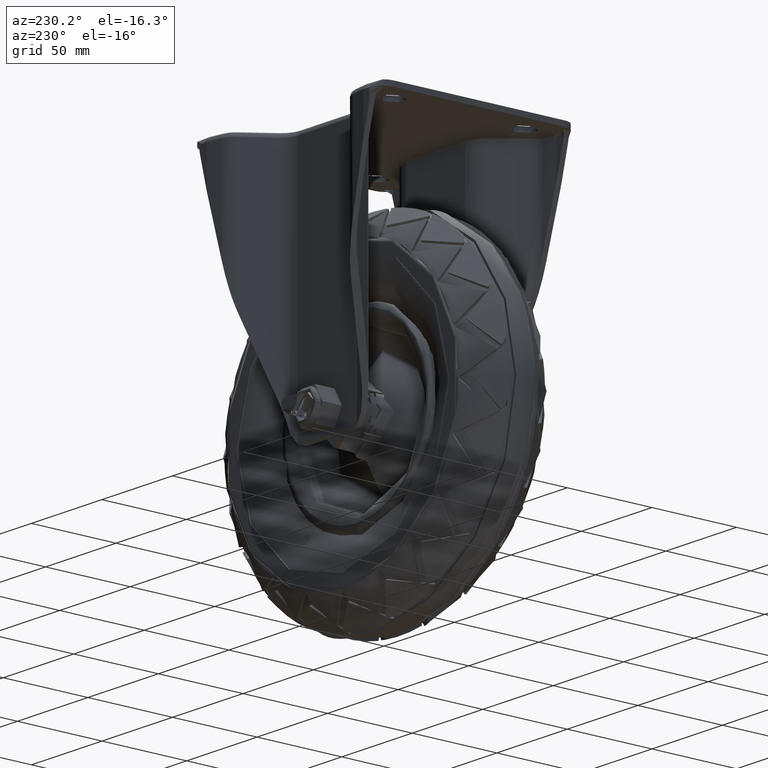
[diagram: clean part render]
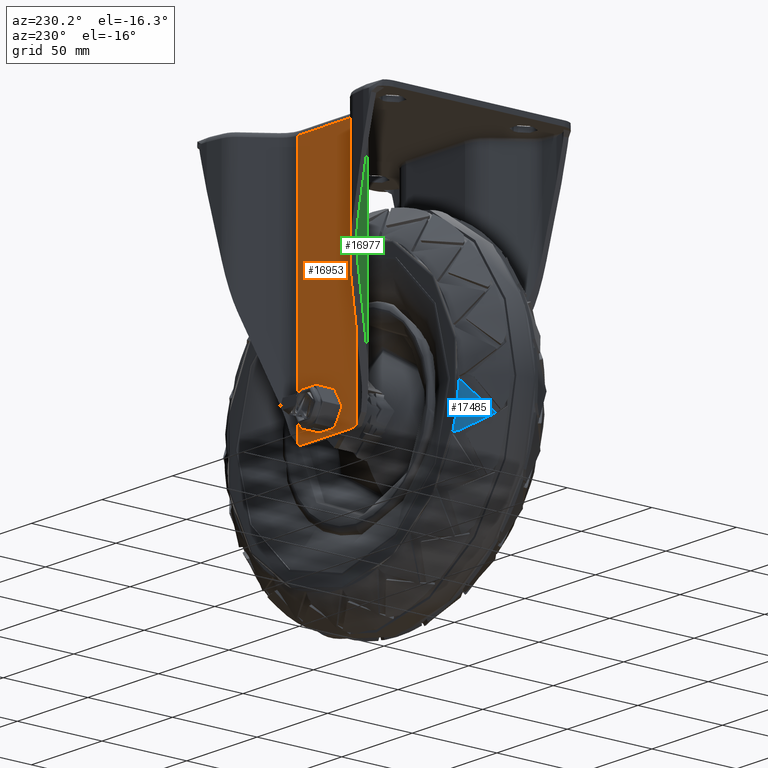
[diagram: same view with three faces highlighted in distinct colors, each labeled with its STEP entity id]
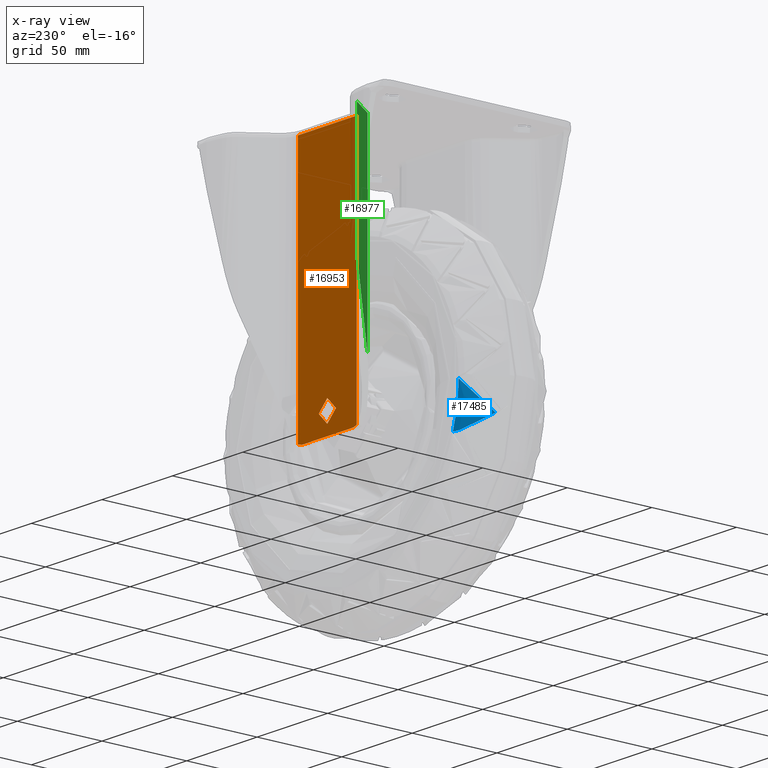
[diagram: x-ray of the same camera — body ghosted, the three highlighted faces saturated]
A machine part, auxiliary view with three faces highlighted in distinct colors.
The next image is the same camera in x-ray (body ghosted, the three faces saturated) — at least one of them is partly hidden behind the body in this view.
Their STEP definitions:

[orange] entity #16953 — the highlighted planar face has unit normal (0, 1, 0).
#454=FACE_BOUND('',#2284,.T.);
#944=PLANE('',#18259);
#1246=FACE_OUTER_BOUND('',#2283,.T.);
#2283=EDGE_LOOP('',(#11817,#11818,#11819,#11820,#11821,#11822));
#2284=EDGE_LOOP('',(#11823));
#3316=CIRCLE('',#18080,6.10000000000001);
#3391=CIRCLE('',#18260,8.);
#3392=CIRCLE('',#18261,8.);
#4111=LINE('',#23824,#5091);
#4235=LINE('',#24538,#5215);
#4236=LINE('',#24553,#5216);
#4237=LINE('',#24557,#5217);
#5091=VECTOR('',#19725,1000.);
#5215=VECTOR('',#20103,1000.);
#5216=VECTOR('',#20108,1000.);
#5217=VECTOR('',#20111,1000.);
#6969=VERTEX_POINT('',#23564);
#7035=VERTEX_POINT('',#23821);
#7036=VERTEX_POINT('',#23823);
#7171=VERTEX_POINT('',#24537);
#7173=VERTEX_POINT('',#24552);
#7174=VERTEX_POINT('',#24554);
#7175=VERTEX_POINT('',#24556);
#8684=EDGE_CURVE('',#6969,#6969,#3316,.T.);
#8762=EDGE_CURVE('',#7035,#7036,#4111,.T.);
#8976=EDGE_CURVE('',#7036,#7171,#4235,.T.);
#8979=EDGE_CURVE('',#7035,#7173,#4236,.T.);
#8980=EDGE_CURVE('',#7173,#7174,#3391,.T.);
#8981=EDGE_CURVE('',#7174,#7175,#4237,.T.);
#8982=EDGE_CURVE('',#7175,#7171,#3392,.T.);
#11817=ORIENTED_EDGE('',*,*,#8762,.F.);
#11818=ORIENTED_EDGE('',*,*,#8979,.T.);
#11819=ORIENTED_EDGE('',*,*,#8980,.T.);
#11820=ORIENTED_EDGE('',*,*,#8981,.T.);
#11821=ORIENTED_EDGE('',*,*,#8982,.T.);
#11822=ORIENTED_EDGE('',*,*,#8976,.F.);
#11823=ORIENTED_EDGE('',*,*,#8684,.T.);
#16953=ADVANCED_FACE('',(#1246,#454),#944,.T.);
#18080=AXIS2_PLACEMENT_3D('',#23566,#19585,#19586);
#18259=AXIS2_PLACEMENT_3D('',#24551,#20106,#20107);
#18260=AXIS2_PLACEMENT_3D('',#24555,#20109,#20110);
#18261=AXIS2_PLACEMENT_3D('',#24558,#20112,#20113);
#19585=DIRECTION('center_axis',(0.,-1.,0.));
#19586=DIRECTION('ref_axis',(1.,0.,0.));
#19725=DIRECTION('',(-1.,0.,0.));
#20103=DIRECTION('',(0.,0.,-1.));
#20106=DIRECTION('center_axis',(0.,1.,0.));
#20107=DIRECTION('ref_axis',(1.,0.,0.));
#20108=DIRECTION('',(0.,0.,-1.));
#20109=DIRECTION('center_axis',(0.,1.,0.));
#20110=DIRECTION('ref_axis',(0.968174432456168,0.,-0.250276383900234));
#20111=DIRECTION('',(-1.,0.,0.));
#20112=DIRECTION('center_axis',(0.,1.,0.));
#20113=DIRECTION('ref_axis',(-0.968174432456168,0.,-0.250276383900234));
#23564=CARTESIAN_POINT('',(-6.10000000000002,33.5,-138.));
#23566=CARTESIAN_POINT('Origin',(-8.4497838413744E-15,33.5,-138.));
#23821=CARTESIAN_POINT('',(20.866800126332,33.5,-3.));
#23823=CARTESIAN_POINT('',(-20.866800126332,33.5,-3.));
#23824=CARTESIAN_POINT('',(0.,33.5,-3.));
#24537=CARTESIAN_POINT('',(-20.866800126332,33.5,-149.163376306498));
#24538=CARTESIAN_POINT('',(-20.866800126332,33.5,0.));
#24551=CARTESIAN_POINT('Origin',(0.,33.5,0.));
#24552=CARTESIAN_POINT('',(20.866800126332,33.5,-149.163376306498));
#24553=CARTESIAN_POINT('',(20.866800126332,33.5,0.));
#24554=CARTESIAN_POINT('',(17.3050533790876,33.5,-150.));
#24555=CARTESIAN_POINT('Origin',(17.3050533790876,33.5,-142.));
#24556=CARTESIAN_POINT('',(-17.3050533790876,33.5,-150.));
#24557=CARTESIAN_POINT('',(20.866800126332,33.5,-150.));
#24558=CARTESIAN_POINT('Origin',(-17.3050533790876,33.5,-142.));

[blue] entity #17485 — the highlighted toroidal blend (fillet) surface has major radius 73.3659 mm and minor (blend) radius 26.63 mm.
#408=TOROIDAL_SURFACE('',#19087,73.3659392882218,26.63);
#1778=FACE_OUTER_BOUND('',#2888,.T.);
#2888=EDGE_LOOP('',(#14836,#14837,#14838,#14839,#14840));
#3632=CIRCLE('',#18761,82.3789062115467);
#6654=B_SPLINE_CURVE_WITH_KNOTS('',3,(#39933,#39934,#39935,#39936,#39937,
#39938,#39939,#39940,#39941,#39942,#39943,#39944,#39945,#39946,#39947,#39948,
#39949,#39950),.UNSPECIFIED.,.F.,.F.,(4,2,2,2,2,2,2,2,4),(-0.782363516240096,
-0.718902758835383,-0.651463883757454,-0.507623019417262,-0.411205677636855,
-0.219395048375068,-0.171807648153662,-0.100167400158344,-7.31433182989827E-5),
 .UNSPECIFIED.);
#6655=B_SPLINE_CURVE_WITH_KNOTS('',3,(#39978,#39979,#39980,#39981,#39982,
#39983,#39984,#39985),.UNSPECIFIED.,.F.,.F.,(4,2,2,4),(-0.32114399431993,
-0.240124787795633,-0.160883353037796,-9.99999994144574E-7),
 .UNSPECIFIED.);
#6656=B_SPLINE_CURVE_WITH_KNOTS('',3,(#40019,#40020,#40021,#40022,#40023,
#40024,#40025,#40026,#40027,#40028,#40029,#40030),.UNSPECIFIED.,.F.,.F.,
(4,2,2,2,2,4),(-2.35212015476109,-2.01781233208902,-1.69511765409295,-1.08477927407584,
-0.797258278234866,-2.52205713723546E-6),.UNSPECIFIED.);
#6657=B_SPLINE_CURVE_WITH_KNOTS('',3,(#40040,#40041,#40042,#40043,#40044,
#40045),.UNSPECIFIED.,.F.,.F.,(4,2,4),(2.58991749679375E-7,0.0457080934245748,
0.0913427630794058),.UNSPECIFIED.);
#7502=VERTEX_POINT('',#25929);
#7503=VERTEX_POINT('',#25931);
#8191=VERTEX_POINT('',#39925);
#8192=VERTEX_POINT('',#39932);
#8193=VERTEX_POINT('',#40018);
#9536=EDGE_CURVE('',#7502,#7503,#3632,.T.);
#10505=EDGE_CURVE('',#8191,#8192,#6654,.F.);
#10507=EDGE_CURVE('',#8192,#7502,#6655,.F.);
#10508=EDGE_CURVE('',#7503,#8193,#6656,.F.);
#10510=EDGE_CURVE('',#8191,#8193,#6657,.T.);
#14836=ORIENTED_EDGE('',*,*,#10510,.T.);
#14837=ORIENTED_EDGE('',*,*,#10508,.F.);
#14838=ORIENTED_EDGE('',*,*,#9536,.F.);
#14839=ORIENTED_EDGE('',*,*,#10507,.F.);
#14840=ORIENTED_EDGE('',*,*,#10505,.F.);
#17485=ADVANCED_FACE('',(#1778),#408,.T.);
#18761=AXIS2_PLACEMENT_3D('',#25932,#21402,#21403);
#19087=AXIS2_PLACEMENT_3D('',#40224,#22231,#22232);
#21402=DIRECTION('center_axis',(0.,1.,-3.22268020717889E-15));
#21403=DIRECTION('ref_axis',(0.,3.22268020717889E-15,1.));
#22231=DIRECTION('center_axis',(0.,1.,-3.22268020717889E-15));
#22232=DIRECTION('ref_axis',(0.,3.22269197108504E-15,1.));
#25929=CARTESIAN_POINT('',(-78.2851300031895,25.034027508566,-25.6461031804453));
#25931=CARTESIAN_POINT('',(-82.3674258193151,25.0340274785244,-1.37526928968306));
#25932=CARTESIAN_POINT('Origin',(0.,25.0340275071417,5.80226737323929E-14));
#39925=CARTESIAN_POINT('',(-94.5564309887738,13.4947817740531,-18.2900906289216));
#39932=CARTESIAN_POINT('',(-81.2635868913933,23.8505200003692,-25.4713887144573));
#39933=CARTESIAN_POINT('Ctrl Pts',(-81.2635868921238,23.8505199527652,-25.4713890342654));
#39934=CARTESIAN_POINT('Ctrl Pts',(-81.7536978731332,23.6245872777066,-25.4366394890381));
#39935=CARTESIAN_POINT('Ctrl Pts',(-82.2222003056163,23.3942367147451,-25.391399340996));
#39936=CARTESIAN_POINT('Ctrl Pts',(-83.1869764135014,22.8920926130794,-25.2708884687677));
#39937=CARTESIAN_POINT('Ctrl Pts',(-83.6754481808939,22.6221585882268,-25.1944732293593));
#39938=CARTESIAN_POINT('Ctrl Pts',(-85.1802540782777,21.7434782946423,-24.9063815595953));
#39939=CARTESIAN_POINT('Ctrl Pts',(-86.1585967160553,21.1026874453488,-24.6412450420085));
#39940=CARTESIAN_POINT('Ctrl Pts',(-87.7171494425676,19.9798371011711,-24.0671577119331));
#39941=CARTESIAN_POINT('Ctrl Pts',(-88.3195072846521,19.5170767390985,-23.8023716119176));
#39942=CARTESIAN_POINT('Ctrl Pts',(-90.0517242710376,18.1092245469202,-22.9016411217734));
#39943=CARTESIAN_POINT('Ctrl Pts',(-91.0976022048341,17.1537613770453,-22.1663324051582));
#39944=CARTESIAN_POINT('Ctrl Pts',(-92.2825366529757,15.9739843573014,-21.0688705774132));
#39945=CARTESIAN_POINT('Ctrl Pts',(-92.5113414015651,15.7408256708116,-20.8425834213798));
#39946=CARTESIAN_POINT('Ctrl Pts',(-93.0663712993904,15.1632086582203,-20.2573939945371));
#39947=CARTESIAN_POINT('Ctrl Pts',(-93.3851634880047,14.8202763101885,-19.8872409320706));
#39948=CARTESIAN_POINT('Ctrl Pts',(-94.1136115680141,14.0134779043949,-18.9597337968325));
#39949=CARTESIAN_POINT('Ctrl Pts',(-94.4025647596537,13.6753480718347,-18.5252980266949));
#39950=CARTESIAN_POINT('Ctrl Pts',(-94.5564309842664,13.4947817799575,-18.290090633904));
#39978=CARTESIAN_POINT('Ctrl Pts',(-78.2851300769425,25.0340275114149,-25.6461029298711));
#39979=CARTESIAN_POINT('Ctrl Pts',(-78.5408391729302,24.9479689316568,-25.6341008458979));
#39980=CARTESIAN_POINT('Ctrl Pts',(-78.7953494349217,24.8584723348153,-25.6214139644301));
#39981=CARTESIAN_POINT('Ctrl Pts',(-79.2962572330547,24.67469034477,-25.5949700265428));
#39982=CARTESIAN_POINT('Ctrl Pts',(-79.5426837176563,24.5805631099689,-25.581242730146));
#39983=CARTESIAN_POINT('Ctrl Pts',(-80.2854462189161,24.2855280166958,-25.5376881128206));
#39984=CARTESIAN_POINT('Ctrl Pts',(-80.7775734204564,24.0745636245582,-25.505848862227));
#39985=CARTESIAN_POINT('Ctrl Pts',(-81.2635868906603,23.8505200481044,-25.4713883937706));
#40018=CARTESIAN_POINT('',(-94.3866493799072,13.9996633466741,-17.5480797809928));
#40019=CARTESIAN_POINT('Ctrl Pts',(-94.3866473150302,13.9996659546804,-17.5480820484732));
#40020=CARTESIAN_POINT('Ctrl Pts',(-94.1677203026055,14.6146389270129,-16.6413881892338));
#40021=CARTESIAN_POINT('Ctrl Pts',(-93.9032512027701,15.2256771800409,-15.7410987219947));
#40022=CARTESIAN_POINT('Ctrl Pts',(-93.2908176083981,16.4112953424189,-13.9956393409337));
#40023=CARTESIAN_POINT('Ctrl Pts',(-92.9458105879735,16.9869864590819,-13.1487683592037));
#40024=CARTESIAN_POINT('Ctrl Pts',(-91.8158051480712,18.6228307921569,-10.7443766338816));
#40025=CARTESIAN_POINT('Ctrl Pts',(-90.9105700043949,19.6604964024598,-9.22172282117625));
#40026=CARTESIAN_POINT('Ctrl Pts',(-89.3218533741605,21.0954111355787,-7.12013805782654));
#40027=CARTESIAN_POINT('Ctrl Pts',(-88.7734195182212,21.5418510954879,-6.46689163933181));
#40028=CARTESIAN_POINT('Ctrl Pts',(-86.5535321271126,23.1603591465676,-4.10116807436539));
#40029=CARTESIAN_POINT('Ctrl Pts',(-84.6062459315034,24.2218038978717,-2.55441565879304));
#40030=CARTESIAN_POINT('Ctrl Pts',(-82.3674259786405,25.0340274212898,-1.37526927914126));
#40040=CARTESIAN_POINT('Ctrl Pts',(-94.5564309910272,13.4947817711017,-18.2900906264293));
#40041=CARTESIAN_POINT('Ctrl Pts',(-94.5297762590758,13.5791666239916,-18.1660652278919));
#40042=CARTESIAN_POINT('Ctrl Pts',(-94.5022922541182,13.6634686303609,-18.0421645871201));
#40043=CARTESIAN_POINT('Ctrl Pts',(-94.4456994771594,13.8317658333843,-17.7948206209347));
#40044=CARTESIAN_POINT('Ctrl Pts',(-94.4165939420593,13.9157595850318,-17.6713794102765));
#40045=CARTESIAN_POINT('Ctrl Pts',(-94.3866514437769,13.9996607420478,-17.548077507479));
#40224=CARTESIAN_POINT('Origin',(0.,-0.0243708303229219,1.38777878078145E-13));

[green] entity #16977 — the highlighted planar face has unit normal (0.8125, 0.5829, 0).
#957=PLANE('',#18303);
#1270=FACE_OUTER_BOUND('',#2312,.T.);
#2312=EDGE_LOOP('',(#11963,#11964,#11965,#11966));
#4121=LINE('',#23866,#5101);
#4264=LINE('',#24676,#5244);
#4265=LINE('',#24689,#5245);
#4266=LINE('',#24690,#5246);
#5101=VECTOR('',#19759,999.999999999999);
#5244=VECTOR('',#20220,1000.);
#5245=VECTOR('',#20225,1000.);
#5246=VECTOR('',#20226,1000.);
#7046=VERTEX_POINT('',#23860);
#7048=VERTEX_POINT('',#23864);
#7196=VERTEX_POINT('',#24675);
#7198=VERTEX_POINT('',#24688);
#8780=EDGE_CURVE('',#7048,#7046,#4121,.T.);
#9029=EDGE_CURVE('',#7046,#7196,#4264,.T.);
#9032=EDGE_CURVE('',#7048,#7198,#4265,.T.);
#9033=EDGE_CURVE('',#7196,#7198,#4266,.T.);
#11963=ORIENTED_EDGE('',*,*,#8780,.F.);
#11964=ORIENTED_EDGE('',*,*,#9032,.T.);
#11965=ORIENTED_EDGE('',*,*,#9033,.F.);
#11966=ORIENTED_EDGE('',*,*,#9029,.F.);
#16977=ADVANCED_FACE('',(#1270),#957,.F.);
#18303=AXIS2_PLACEMENT_3D('',#24687,#20223,#20224);
#19759=DIRECTION('',(0.582907875451732,-0.812538250629685,0.));
#20220=DIRECTION('',(0.,0.,-1.));
#20223=DIRECTION('center_axis',(0.812538250629685,0.582907875451732,0.));
#20224=DIRECTION('ref_axis',(0.582907875451732,-0.812538250629685,0.));
#20225=DIRECTION('',(0.,0.,-1.));
#20226=DIRECTION('',(-0.236308589038396,0.329399851386855,0.914141120753793));
#23860=CARTESIAN_POINT('',(-31.429797384518,35.9221976191275,-4.49999999999999));
#23864=CARTESIAN_POINT('',(-42.4873848770296,51.335804426871,-4.49999999999999));
#23866=CARTESIAN_POINT('',(-31.6344083659694,36.2074129266052,-4.49999999999999));
#24675=CARTESIAN_POINT('',(-31.429797384518,35.9221976191275,-119.324204854628));
#24676=CARTESIAN_POINT('',(-31.429797384518,35.9221976191275,-2.99999999999999));
#24687=CARTESIAN_POINT('Origin',(-36.9585911307738,43.6290010229993,-2.99999999999999));
#24688=CARTESIAN_POINT('',(-42.4873848770296,51.335804426871,-76.5488006072799));
#24689=CARTESIAN_POINT('',(-42.4873848770296,51.335804426871,-2.99999999999999));
#24690=CARTESIAN_POINT('',(-53.5153539848239,66.7081250013721,-33.8879727429178));